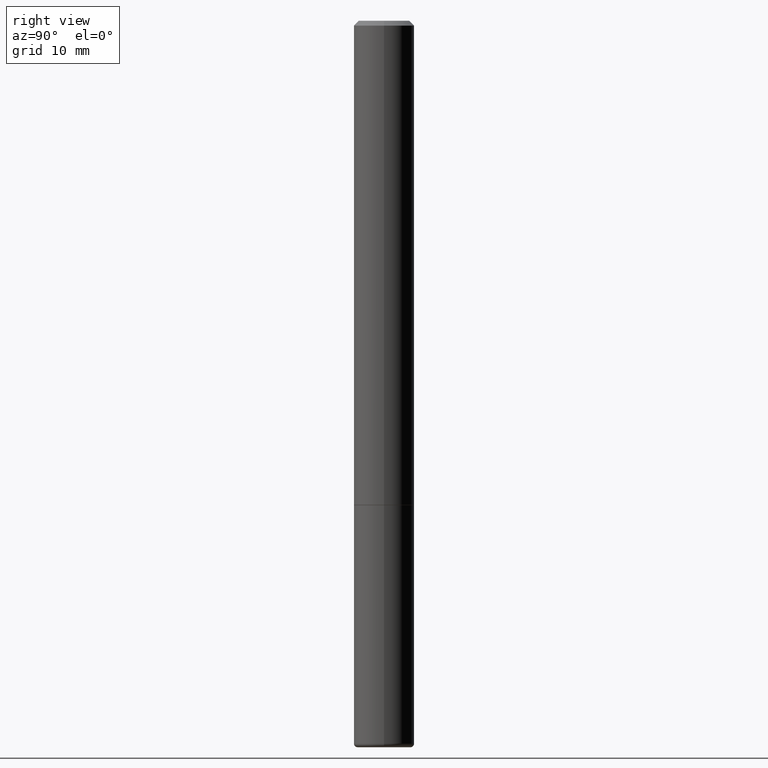
[diagram: clean part render]
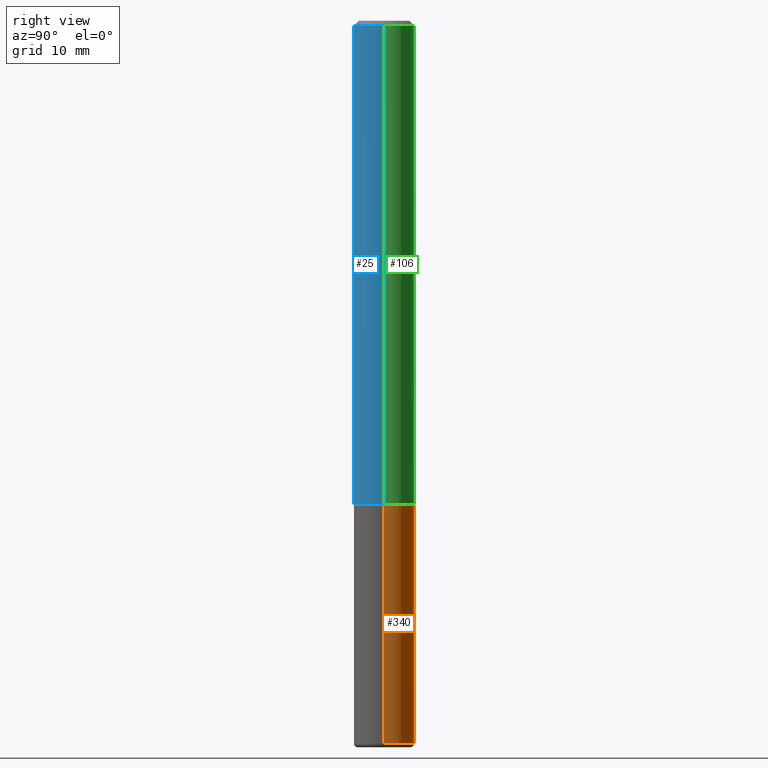
[diagram: same view with three faces highlighted in distinct colors, each labeled with its STEP entity id]
A machine part, right view with three faces highlighted in distinct colors.
Their STEP definitions:

[orange] entity #340 — the highlighted cylindrical surface (edge-blend (fillet) strip) has radius 3.175 mm, axis along (-0, 0, 1).
#10 = AXIS2_PLACEMENT_3D ( 'NONE', #226, #126, #258 ) ;
#20 = ORIENTED_EDGE ( 'NONE', *, *, #34, .T. ) ;
#26 = VECTOR ( 'NONE', #454, 39.37007874015748143 ) ;
#34 = EDGE_CURVE ( 'NONE', #305, #259, #308, .T. ) ;
#42 = CARTESIAN_POINT ( 'NONE',  ( 4.890937612370273754E-29, -6.982962677686291954E-15, -2.000000000000000444 ) ) ;
#43 = VERTEX_POINT ( 'NONE', #173 ) ;
#48 = CARTESIAN_POINT ( 'NONE',  ( 0.1250000000000000278, -7.855833012397075293E-15, -2.000000000000000444 ) ) ;
#55 = ORIENTED_EDGE ( 'NONE', *, *, #422, .F. ) ;
#86 = DIRECTION ( 'NONE',  ( -2.445468806185136877E-29, 3.491481338843145188E-15, 1.000000000000000000 ) ) ;
#92 = LINE ( 'NONE', #121, #402 ) ;
#95 = AXIS2_PLACEMENT_3D ( 'NONE', #104, #202, #100 ) ;
#100 = DIRECTION ( 'NONE',  ( 1.000000000000000000, -6.982962677686261189E-15, 0.000000000000000000 ) ) ;
#104 = CARTESIAN_POINT ( 'NONE',  ( 7.299725783202013722E-29, -1.042207379062045199E-14, -2.985000571154037274 ) ) ;
#121 = CARTESIAN_POINT ( 'NONE',  ( 0.1250000000000000278, -8.728703347107836346E-16, 6.095220969744921142E-30 ) ) ;
#126 = DIRECTION ( 'NONE',  ( -2.445468806185136597E-29, 3.491481338843145583E-15, 1.000000000000000000 ) ) ;
#173 = CARTESIAN_POINT ( 'NONE',  ( -0.1250000000000000278, -7.814339814453245950E-15, -2.000000000000000444 ) ) ;
#179 = EDGE_CURVE ( 'NONE', #259, #43, #293, .T. ) ;
#183 = EDGE_LOOP ( 'NONE', ( #20, #434, #55, #223 ) ) ;
#197 = DIRECTION ( 'NONE',  ( 1.000000000000000000, -6.982962677686269077E-15, 0.000000000000000000 ) ) ;
#202 = DIRECTION ( 'NONE',  ( -2.445468806185136597E-29, 3.491481338843145583E-15, 1.000000000000000000 ) ) ;
#216 = CARTESIAN_POINT ( 'NONE',  ( -0.1250000000000000278, 8.881784197001254296E-16, -6.148668862818634329E-30 ) ) ;
#223 = ORIENTED_EDGE ( 'NONE', *, *, #435, .F. ) ;
#226 = CARTESIAN_POINT ( 'NONE',  ( 0.000000000000000000, 0.000000000000000000, 0.000000000000000000 ) ) ;
#258 = DIRECTION ( 'NONE',  ( 1.000000000000000000, -6.982962677686267499E-15, 4.876176775795935793E-29 ) ) ;
#259 = VERTEX_POINT ( 'NONE', #492 ) ;
#261 = CIRCLE ( 'NONE', #446, 0.1250000000000000278 ) ;
#293 = LINE ( 'NONE', #216, #26 ) ;
#305 = VERTEX_POINT ( 'NONE', #430 ) ;
#308 = CIRCLE ( 'NONE', #95, 0.1250000000000000278 ) ;
#312 = CYLINDRICAL_SURFACE ( 'NONE', #10, 0.1250000000000000278 ) ;
#340 = ADVANCED_FACE ( 'NONE', ( #462 ), #312, .T. ) ;
#402 = VECTOR ( 'NONE', #86, 39.37007874015748143 ) ;
#422 = EDGE_CURVE ( 'NONE', #463, #43, #261, .T. ) ;
#430 = CARTESIAN_POINT ( 'NONE',  ( 0.1250000000000000278, -1.129494412533123533E-14, -2.985000571154037274 ) ) ;
#432 = DIRECTION ( 'NONE',  ( -2.445468806185136597E-29, 3.491481338843145583E-15, 1.000000000000000000 ) ) ;
#434 = ORIENTED_EDGE ( 'NONE', *, *, #179, .T. ) ;
#435 = EDGE_CURVE ( 'NONE', #305, #463, #92, .T. ) ;
#446 = AXIS2_PLACEMENT_3D ( 'NONE', #42, #432, #197 ) ;
#454 = DIRECTION ( 'NONE',  ( -2.445468806185136877E-29, 3.491481338843145188E-15, 1.000000000000000000 ) ) ;
#462 = FACE_OUTER_BOUND ( 'NONE', #183, .T. ) ;
#463 = VERTEX_POINT ( 'NONE', #48 ) ;
#492 = CARTESIAN_POINT ( 'NONE',  ( -0.1250000000000000278, -7.814339814453245950E-15, -2.985000571154037274 ) ) ;

[blue] entity #25 — the highlighted cylindrical surface (edge-blend (fillet) strip) has radius 3.175 mm, axis along (-0, 0, 1).
#1 = DIRECTION ( 'NONE',  ( -2.445468806185136597E-29, 3.491481338843145583E-15, 1.000000000000000000 ) ) ;
#4 = CARTESIAN_POINT ( 'NONE',  ( 4.890937612370295054E-31, -6.982962677686322424E-17, -0.02000000000000009062 ) ) ;
#25 = ADVANCED_FACE ( 'NONE', ( #102 ), #140, .T. ) ;
#46 = AXIS2_PLACEMENT_3D ( 'NONE', #109, #107, #330 ) ;
#47 = VECTOR ( 'NONE', #339, 39.37007874015748143 ) ;
#69 = CARTESIAN_POINT ( 'NONE',  ( -0.1250000000000000278, -2.636471991862020635E-15, -1.999000000000000110 ) ) ;
#102 = FACE_OUTER_BOUND ( 'NONE', #420, .T. ) ;
#107 = DIRECTION ( 'NONE',  ( -2.445468806185136597E-29, 3.491481338843145583E-15, 1.000000000000000000 ) ) ;
#109 = CARTESIAN_POINT ( 'NONE',  ( 4.888492143564088712E-29, -6.979471196347448158E-15, -1.999000000000000110 ) ) ;
#110 = VERTEX_POINT ( 'NONE', #69 ) ;
#122 = AXIS2_PLACEMENT_3D ( 'NONE', #211, #245, #480 ) ;
#128 = DIRECTION ( 'NONE',  ( 1.000000000000000000, -6.982962677686265922E-15, 0.000000000000000000 ) ) ;
#140 = CYLINDRICAL_SURFACE ( 'NONE', #122, 0.1249999999999996947 ) ;
#143 = CARTESIAN_POINT ( 'NONE',  ( 0.1249999999999993477, -9.273918764983002075E-16, -0.02000000000000009062 ) ) ;
#150 = VERTEX_POINT ( 'NONE', #143 ) ;
#156 = ORIENTED_EDGE ( 'NONE', *, *, #407, .T. ) ;
#158 = DIRECTION ( 'NONE',  ( -2.445468806185136877E-29, 3.491481338843145188E-15, 1.000000000000000000 ) ) ;
#165 = EDGE_CURVE ( 'NONE', #110, #236, #415, .T. ) ;
#189 = LINE ( 'NONE', #335, #47 ) ;
#211 = CARTESIAN_POINT ( 'NONE',  ( 0.000000000000000000, 0.000000000000000000, 0.000000000000000000 ) ) ;
#212 = CIRCLE ( 'NONE', #488, 0.1249999999999993477 ) ;
#236 = VERTEX_POINT ( 'NONE', #414 ) ;
#245 = DIRECTION ( 'NONE',  ( -2.445468806185136597E-29, 3.491481338843145583E-15, 1.000000000000000000 ) ) ;
#268 = LINE ( 'NONE', #344, #324 ) ;
#313 = ORIENTED_EDGE ( 'NONE', *, *, #388, .F. ) ;
#324 = VECTOR ( 'NONE', #158, 39.37007874015748143 ) ;
#330 = DIRECTION ( 'NONE',  ( 1.000000000000000000, -6.982962677686269077E-15, 0.000000000000000000 ) ) ;
#331 = ORIENTED_EDGE ( 'NONE', *, *, #397, .F. ) ;
#335 = CARTESIAN_POINT ( 'NONE',  ( -0.1249999999999996947, 8.881784197001230630E-16, -6.148668862818616813E-30 ) ) ;
#339 = DIRECTION ( 'NONE',  ( -2.445468806185136877E-29, 3.491481338843145188E-15, 1.000000000000000000 ) ) ;
#343 = ORIENTED_EDGE ( 'NONE', *, *, #165, .T. ) ;
#344 = CARTESIAN_POINT ( 'NONE',  ( 0.1249999999999996947, -8.728703347107811695E-16, 6.095220969744905027E-30 ) ) ;
#387 = VERTEX_POINT ( 'NONE', #471 ) ;
#388 = EDGE_CURVE ( 'NONE', #387, #150, #212, .T. ) ;
#397 = EDGE_CURVE ( 'NONE', #110, #387, #189, .T. ) ;
#407 = EDGE_CURVE ( 'NONE', #236, #150, #268, .T. ) ;
#414 = CARTESIAN_POINT ( 'NONE',  ( 0.1250000000000000278, -7.852341531058232286E-15, -1.999000000000000110 ) ) ;
#415 = CIRCLE ( 'NONE', #46, 0.1250000000000000278 ) ;
#420 = EDGE_LOOP ( 'NONE', ( #331, #343, #156, #313 ) ) ;
#471 = CARTESIAN_POINT ( 'NONE',  ( -0.1249999999999993477, 8.030407079339155047E-16, -0.02000000000000009062 ) ) ;
#480 = DIRECTION ( 'NONE',  ( 1.000000000000000000, -6.982962677686266711E-15, 4.876176775795935793E-29 ) ) ;
#488 = AXIS2_PLACEMENT_3D ( 'NONE', #4, #1, #128 ) ;

[green] entity #106 — the highlighted cylindrical surface (edge-blend (fillet) strip) has radius 3.175 mm, axis along (-0, 0, 1).
#13 = ORIENTED_EDGE ( 'NONE', *, *, #441, .F. ) ;
#22 = DIRECTION ( 'NONE',  ( 1.000000000000000000, -6.982962677686266711E-15, 4.876176775795935793E-29 ) ) ;
#47 = VECTOR ( 'NONE', #339, 39.37007874015748143 ) ;
#61 = DIRECTION ( 'NONE',  ( -2.445468806185136597E-29, 3.491481338843145583E-15, 1.000000000000000000 ) ) ;
#69 = CARTESIAN_POINT ( 'NONE',  ( -0.1250000000000000278, -2.636471991862020635E-15, -1.999000000000000110 ) ) ;
#87 = ORIENTED_EDGE ( 'NONE', *, *, #407, .F. ) ;
#94 = ORIENTED_EDGE ( 'NONE', *, *, #397, .T. ) ;
#106 = ADVANCED_FACE ( 'NONE', ( #277 ), #135, .T. ) ;
#110 = VERTEX_POINT ( 'NONE', #69 ) ;
#135 = CYLINDRICAL_SURFACE ( 'NONE', #227, 0.1249999999999996947 ) ;
#143 = CARTESIAN_POINT ( 'NONE',  ( 0.1249999999999993477, -9.273918764983002075E-16, -0.02000000000000009062 ) ) ;
#150 = VERTEX_POINT ( 'NONE', #143 ) ;
#152 = CIRCLE ( 'NONE', #198, 0.1250000000000000278 ) ;
#154 = CIRCLE ( 'NONE', #365, 0.1249999999999993477 ) ;
#155 = EDGE_LOOP ( 'NONE', ( #201, #94, #13, #87 ) ) ;
#158 = DIRECTION ( 'NONE',  ( -2.445468806185136877E-29, 3.491481338843145188E-15, 1.000000000000000000 ) ) ;
#162 = CARTESIAN_POINT ( 'NONE',  ( 4.890937612370295054E-31, -6.982962677686322424E-17, -0.02000000000000009062 ) ) ;
#188 = DIRECTION ( 'NONE',  ( -2.445468806185136597E-29, 3.491481338843145583E-15, 1.000000000000000000 ) ) ;
#189 = LINE ( 'NONE', #335, #47 ) ;
#198 = AXIS2_PLACEMENT_3D ( 'NONE', #327, #369, #294 ) ;
#201 = ORIENTED_EDGE ( 'NONE', *, *, #250, .T. ) ;
#227 = AXIS2_PLACEMENT_3D ( 'NONE', #401, #61, #22 ) ;
#236 = VERTEX_POINT ( 'NONE', #414 ) ;
#250 = EDGE_CURVE ( 'NONE', #236, #110, #152, .T. ) ;
#268 = LINE ( 'NONE', #344, #324 ) ;
#277 = FACE_OUTER_BOUND ( 'NONE', #155, .T. ) ;
#294 = DIRECTION ( 'NONE',  ( 1.000000000000000000, -6.982962677686269077E-15, 0.000000000000000000 ) ) ;
#324 = VECTOR ( 'NONE', #158, 39.37007874015748143 ) ;
#327 = CARTESIAN_POINT ( 'NONE',  ( 4.888492143564088712E-29, -6.979471196347448158E-15, -1.999000000000000110 ) ) ;
#332 = DIRECTION ( 'NONE',  ( 1.000000000000000000, -6.982962677686265922E-15, 0.000000000000000000 ) ) ;
#335 = CARTESIAN_POINT ( 'NONE',  ( -0.1249999999999996947, 8.881784197001230630E-16, -6.148668862818616813E-30 ) ) ;
#339 = DIRECTION ( 'NONE',  ( -2.445468806185136877E-29, 3.491481338843145188E-15, 1.000000000000000000 ) ) ;
#344 = CARTESIAN_POINT ( 'NONE',  ( 0.1249999999999996947, -8.728703347107811695E-16, 6.095220969744905027E-30 ) ) ;
#365 = AXIS2_PLACEMENT_3D ( 'NONE', #162, #188, #332 ) ;
#369 = DIRECTION ( 'NONE',  ( -2.445468806185136597E-29, 3.491481338843145583E-15, 1.000000000000000000 ) ) ;
#387 = VERTEX_POINT ( 'NONE', #471 ) ;
#397 = EDGE_CURVE ( 'NONE', #110, #387, #189, .T. ) ;
#401 = CARTESIAN_POINT ( 'NONE',  ( 0.000000000000000000, 0.000000000000000000, 0.000000000000000000 ) ) ;
#407 = EDGE_CURVE ( 'NONE', #236, #150, #268, .T. ) ;
#414 = CARTESIAN_POINT ( 'NONE',  ( 0.1250000000000000278, -7.852341531058232286E-15, -1.999000000000000110 ) ) ;
#441 = EDGE_CURVE ( 'NONE', #150, #387, #154, .T. ) ;
#471 = CARTESIAN_POINT ( 'NONE',  ( -0.1249999999999993477, 8.030407079339155047E-16, -0.02000000000000009062 ) ) ;